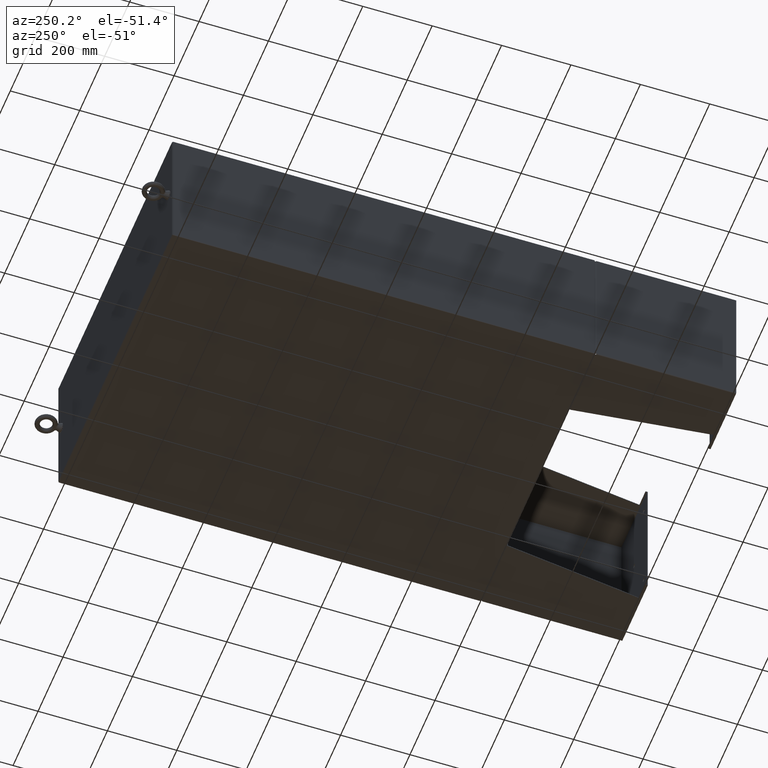
[diagram: clean part render]
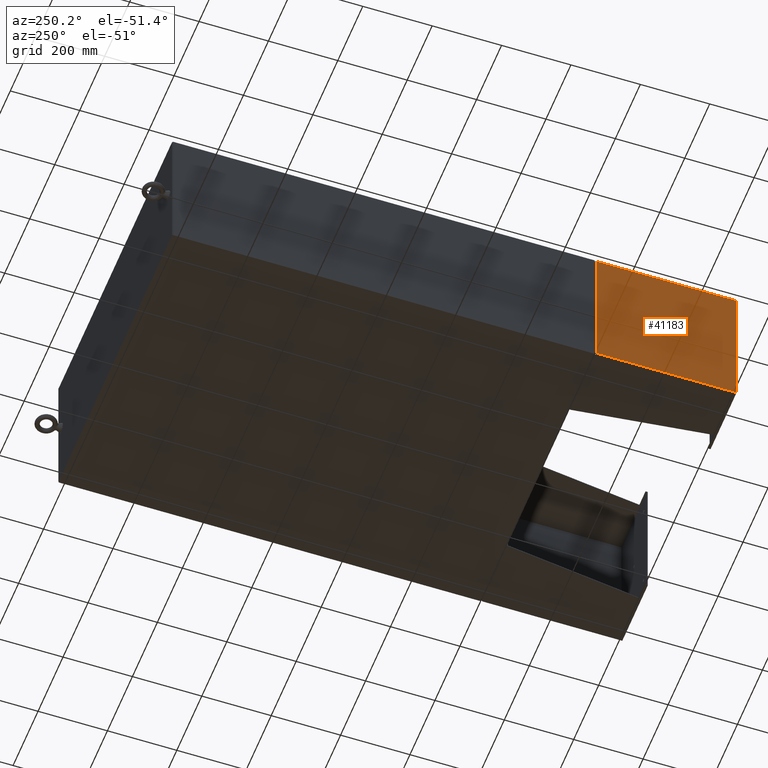
[diagram: same view with one face highlighted and labeled with its STEP entity id]
A machine part, auxiliary view. The second image highlights one B-rep face of the part: STEP entity #41183.
In plain terms, the highlighted planar face has unit normal (-1, 0, -0).
Its self-contained STEP definition (entity closure, byte-faithful):
#91 = DIRECTION ( 'NONE',  ( -0.0000000000000000000, -1.000000000000000000, -0.0000000000000000000 ) ) ;
#288 = PLANE ( 'NONE',  #45048 ) ;
#1849 = ORIENTED_EDGE ( 'NONE', *, *, #44221, .T. ) ;
#2508 = VERTEX_POINT ( 'NONE', #52910 ) ;
#2905 = CARTESIAN_POINT ( 'NONE',  ( -7.856999999999997500, -7.999999999999999100, -0.1039999999999998600 ) ) ;
#4340 = DIRECTION ( 'NONE',  ( 0.0000000000000000000, 0.0000000000000000000, -1.000000000000000000 ) ) ;
#5570 = ORIENTED_EDGE ( 'NONE', *, *, #17004, .F. ) ;
#6711 = VECTOR ( 'NONE', #91, 39.37007874015748100 ) ;
#9153 = VECTOR ( 'NONE', #40851, 39.37007874015748100 ) ;
#10376 = LINE ( 'NONE', #48578, #52358 ) ;
#15250 = DIRECTION ( 'NONE',  ( -0.0000000000000000000, 1.000000000000000000, -0.0000000000000000000 ) ) ;
#16831 = VECTOR ( 'NONE', #15250, 39.37007874015748100 ) ;
#17004 = EDGE_CURVE ( 'NONE', #2508, #52067, #10376, .T. ) ;
#17341 = ORIENTED_EDGE ( 'NONE', *, *, #31654, .T. ) ;
#18134 = LINE ( 'NONE', #2905, #16831 ) ;
#19251 = CARTESIAN_POINT ( 'NONE',  ( 7.857000000000001100, -7.999999999999989300, -0.1039999999999998600 ) ) ;
#21103 = EDGE_LOOP ( 'NONE', ( #1849, #22060, #17341, #5570 ) ) ;
#21154 = LINE ( 'NONE', #40650, #9153 ) ;
#22060 = ORIENTED_EDGE ( 'NONE', *, *, #22191, .T. ) ;
#22191 = EDGE_CURVE ( 'NONE', #27675, #24809, #21154, .T. ) ;
#24809 = VERTEX_POINT ( 'NONE', #42250 ) ;
#27675 = VERTEX_POINT ( 'NONE', #51231 ) ;
#28799 = CARTESIAN_POINT ( 'NONE',  ( 7.857000000000001100, 8.000000000000001800, -0.1039999999999998600 ) ) ;
#29006 = CARTESIAN_POINT ( 'NONE',  ( 8.000000000000001800, 8.000000000000001800, -0.1039999999999999800 ) ) ;
#31654 = EDGE_CURVE ( 'NONE', #24809, #52067, #48025, .T. ) ;
#33153 = DIRECTION ( 'NONE',  ( -1.000000000000000000, 0.0000000000000000000, -0.0000000000000000000 ) ) ;
#40650 = CARTESIAN_POINT ( 'NONE',  ( -7.856999999999996700, 7.857000000000001100, -0.1039999999999998600 ) ) ;
#40851 = DIRECTION ( 'NONE',  ( 1.000000000000000000, 0.0000000000000000000, 0.0000000000000000000 ) ) ;
#41183 = ADVANCED_FACE ( 'NONE', ( #43768 ), #288, .T. ) ;
#42250 = CARTESIAN_POINT ( 'NONE',  ( 7.857000000000001100, 7.857000000000001100, -0.1039999999999998600 ) ) ;
#43768 = FACE_OUTER_BOUND ( 'NONE', #21103, .T. ) ;
#44221 = EDGE_CURVE ( 'NONE', #2508, #27675, #18134, .T. ) ;
#45048 = AXIS2_PLACEMENT_3D ( 'NONE', #29006, #4340, #33153 ) ;
#46568 = DIRECTION ( 'NONE',  ( 1.000000000000000000, 0.0000000000000000000, 0.0000000000000000000 ) ) ;
#48025 = LINE ( 'NONE', #28799, #6711 ) ;
#48578 = CARTESIAN_POINT ( 'NONE',  ( -7.999999999999997300, -7.999999999999999100, -0.1039999999999999800 ) ) ;
#51231 = CARTESIAN_POINT ( 'NONE',  ( -7.856999999999997500, 7.856999999999998400, -0.1039999999999999000 ) ) ;
#52067 = VERTEX_POINT ( 'NONE', #19251 ) ;
#52358 = VECTOR ( 'NONE', #46568, 39.37007874015748100 ) ;
#52910 = CARTESIAN_POINT ( 'NONE',  ( -7.856999999999997500, -8.000000000000000000, -0.1039999999999998600 ) ) ;